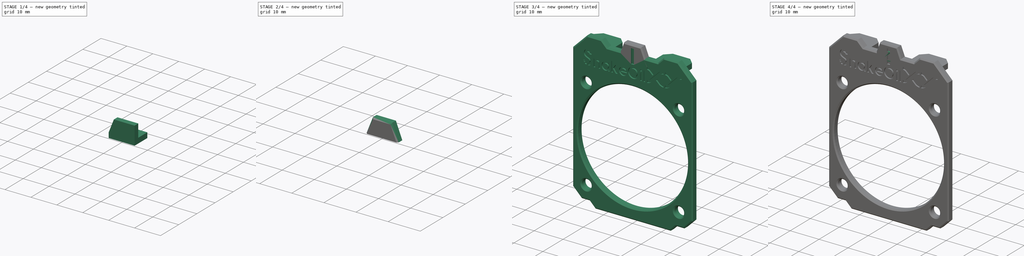
[diagram: build sequence overview — one tinted view per stage of 4, left to right]
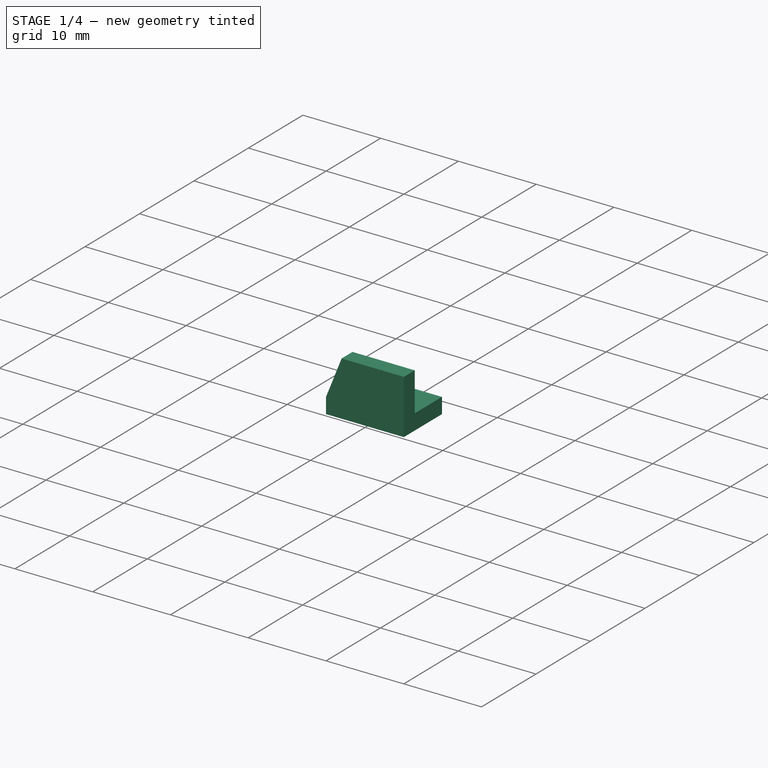
[diagram: stage 1 of 4 — iso view after this stage's code; geometry added in this stage tinted green]
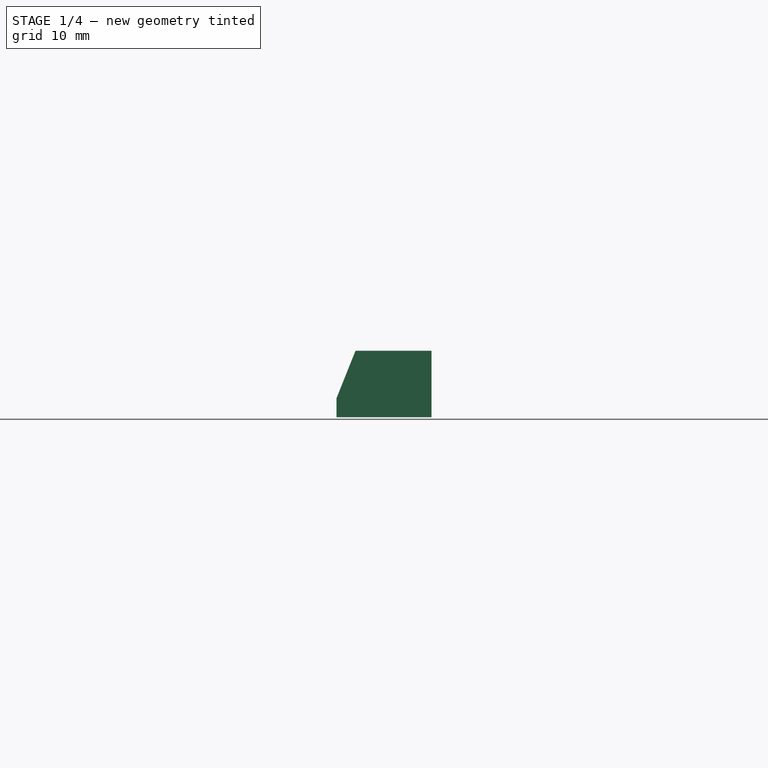
[diagram: stage 1 of 4 — front view after this stage's code; geometry added in this stage tinted green]
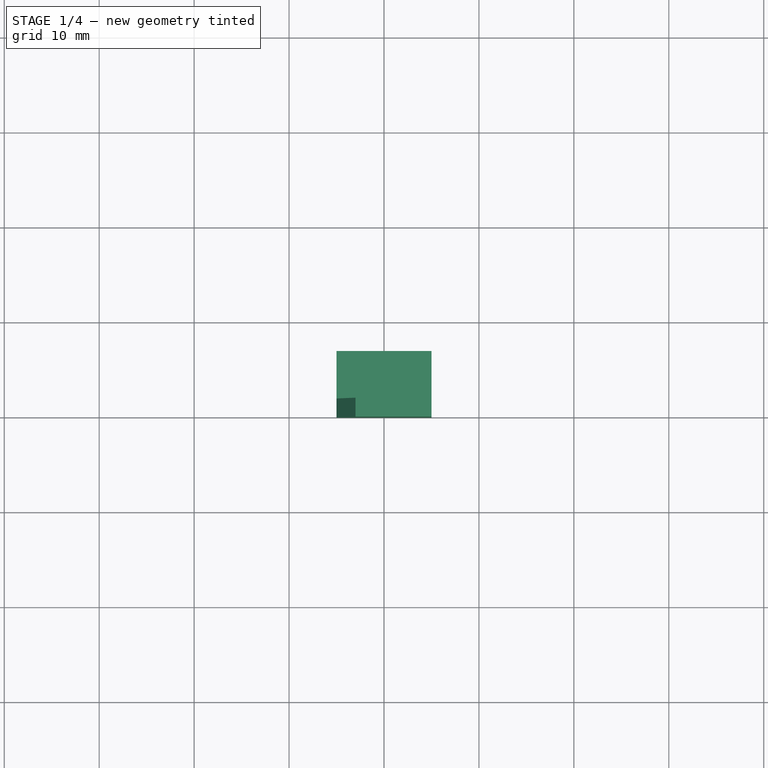
[diagram: stage 1 of 4 — top view after this stage's code; geometry added in this stage tinted green]
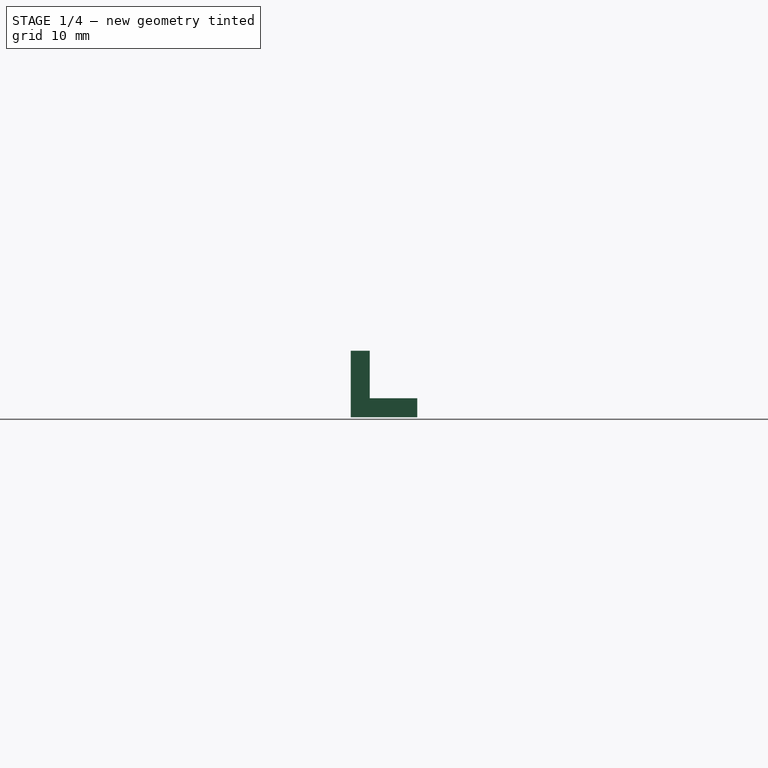
[diagram: stage 1 of 4 — right view after this stage's code; geometry added in this stage tinted green]
FCSTD DOCUMENT  (FreeCAD 0.19R24291 (Git))
Label: face
License: All rights reserved
LicenseURL: http://en.wikipedia.org/wiki/All_rights_reserved
objects: Part::Chamfer×3, Sketcher::SketchObject×3, PartDesign::Pocket×3, Part::Feature×2, Part::Box×2, PartDesign::FeatureBase×2, PartDesign::Body×2, Part::Cut×1, Part::MultiFuse×1
note: 22 computed .brp shape members not serialized (recipe doc carries the construction recipe); baked Part::Feature solids carry a one-line shape summary decoded from their .brp

FEATURE [Part::Feature] Chamfer005021077002006007019003014001  label="face-plate"
  Placement = pos=(0,-1,-48) rot=(0,0,1;0rad)
  shape: bbox 41.5 x 7.5 x 53.5 mm, 789 faces (baked)
FEATURE [Part::Box] Box  label="Cube"
  AttacherType = Attacher::AttachEngine3D
  Height = 6
  Length = 10
  Placement = pos=(-5,0,-1) rot=(0,0,1;0rad)
  Width = 2
FEATURE [Part::Chamfer] Chamfer
  Base = -> Box
  Edges = 1 edges: [Edge2 r1=5 r2=2]
FEATURE [Part::Box] Box001  label="Cube001"
  AttacherType = Attacher::AttachEngine3D
  Height = 2
  Length = 10
  Placement = pos=(-5,0,-2) rot=(0,0,1;0rad)
  Width = 7
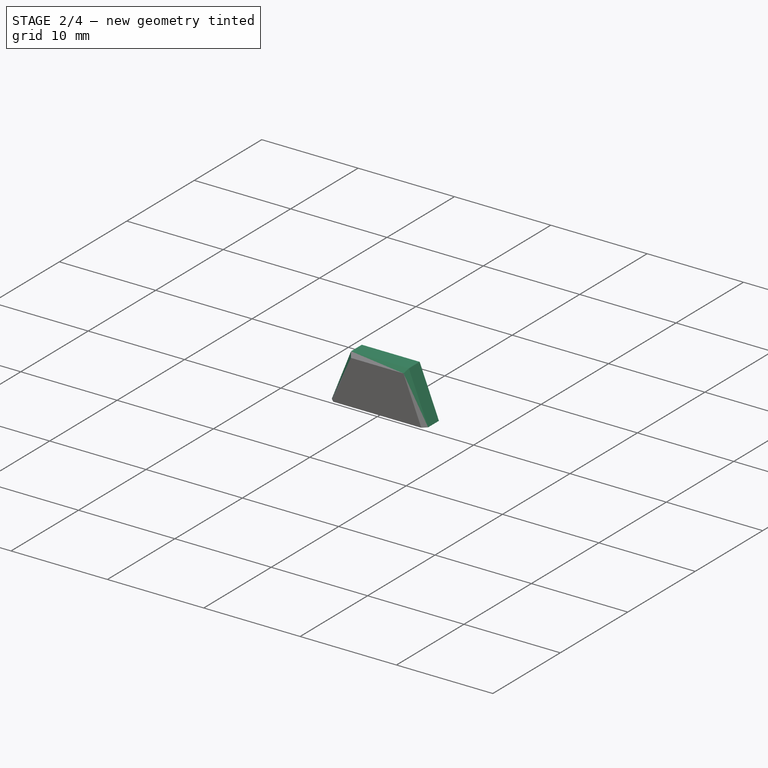
[diagram: stage 2 of 4 — iso view after this stage's code; geometry added in this stage tinted green]
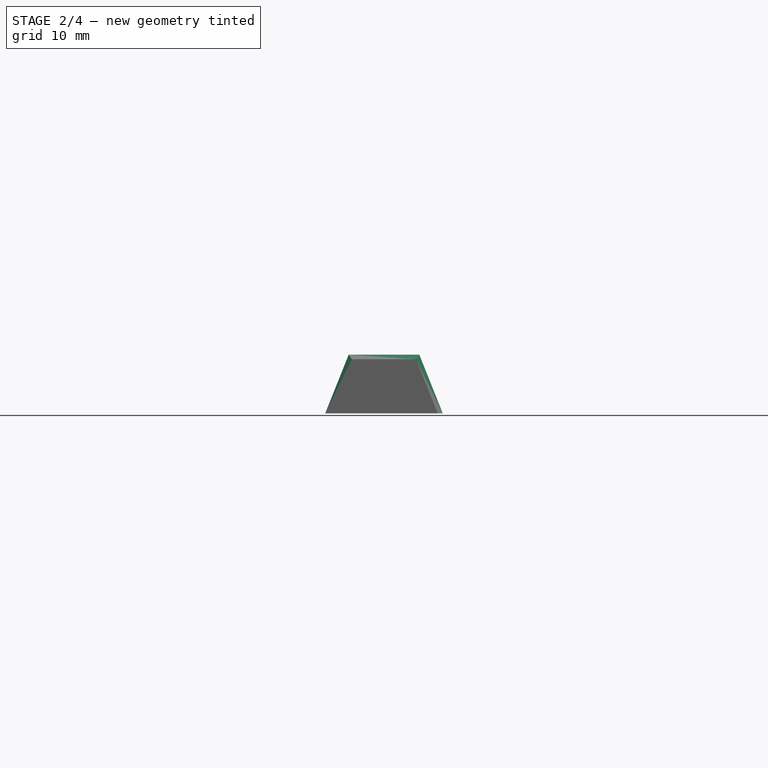
[diagram: stage 2 of 4 — front view after this stage's code; geometry added in this stage tinted green]
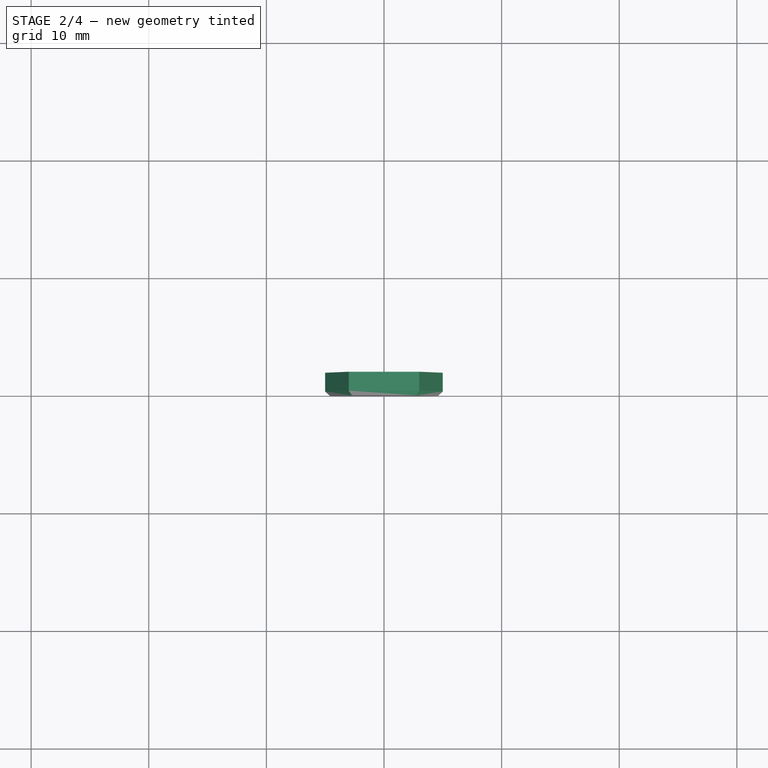
[diagram: stage 2 of 4 — top view after this stage's code; geometry added in this stage tinted green]
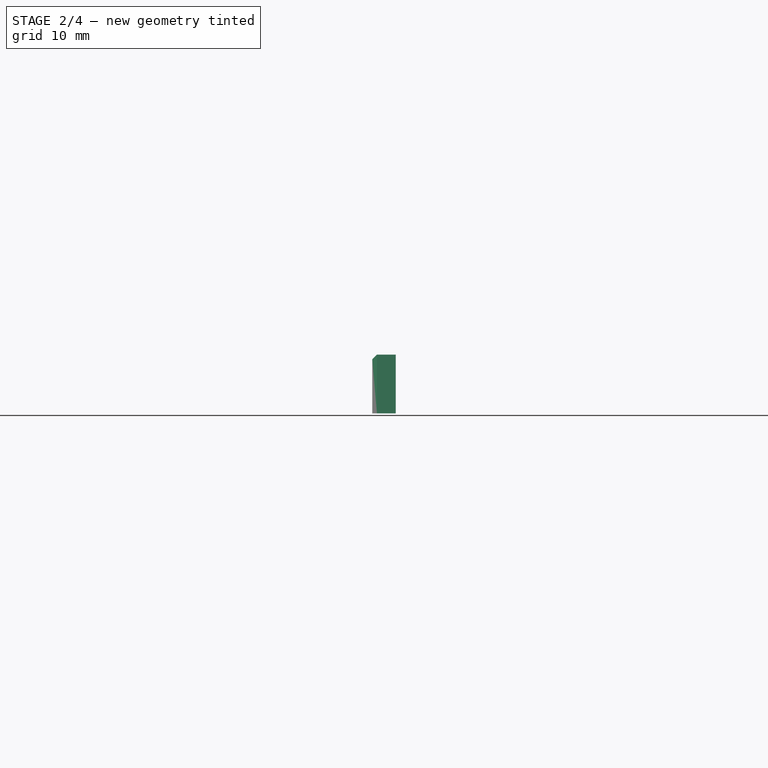
[diagram: stage 2 of 4 — right view after this stage's code; geometry added in this stage tinted green]
FEATURE [Part::Chamfer] Chamfer005021077002006007019003014002
  Base = -> Chamfer
  Edges = 1 edges: [Edge15 r1=2 r2=5]
FEATURE [Part::Chamfer] Chamfer005021077002006007019003014003
  Base = -> Chamfer005021077002006007019003014002
  Edges = 3 edges r=0.4: [Edge1,Edge2,Edge6]
FEATURE [Part::Cut] Cut  label="horn"
  Base = -> Chamfer005021077002006007019003014003
  Placement = pos=(0,0,-1) rot=(0,0,1;0rad)
  Tool = -> Box001
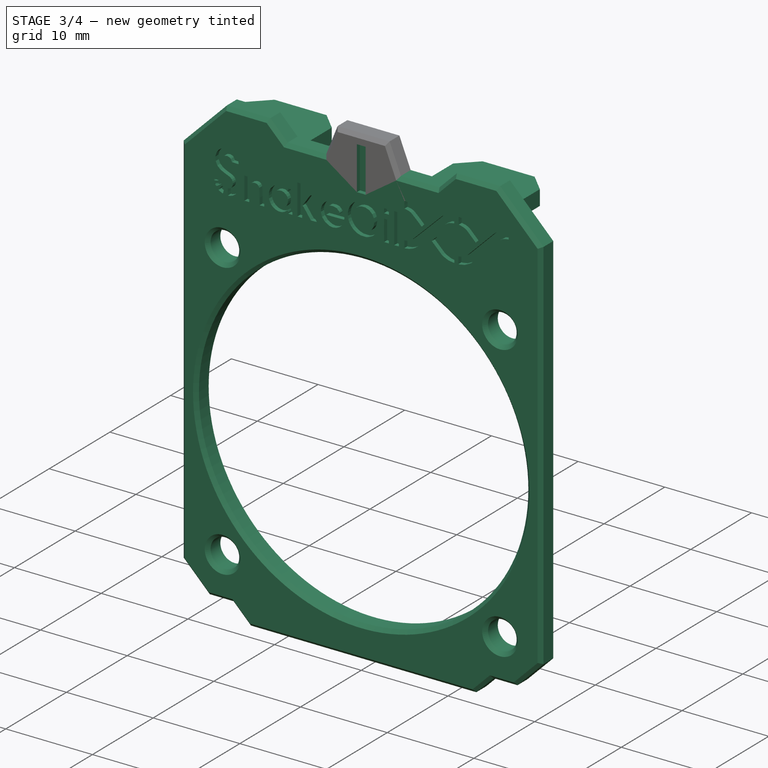
[diagram: stage 3 of 4 — iso view after this stage's code; geometry added in this stage tinted green]
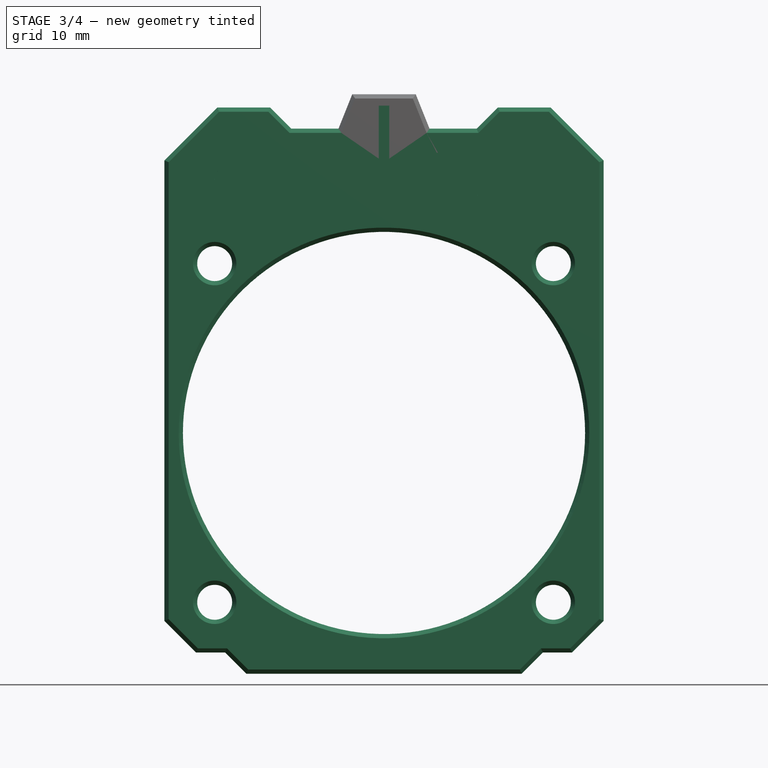
[diagram: stage 3 of 4 — front view after this stage's code; geometry added in this stage tinted green]
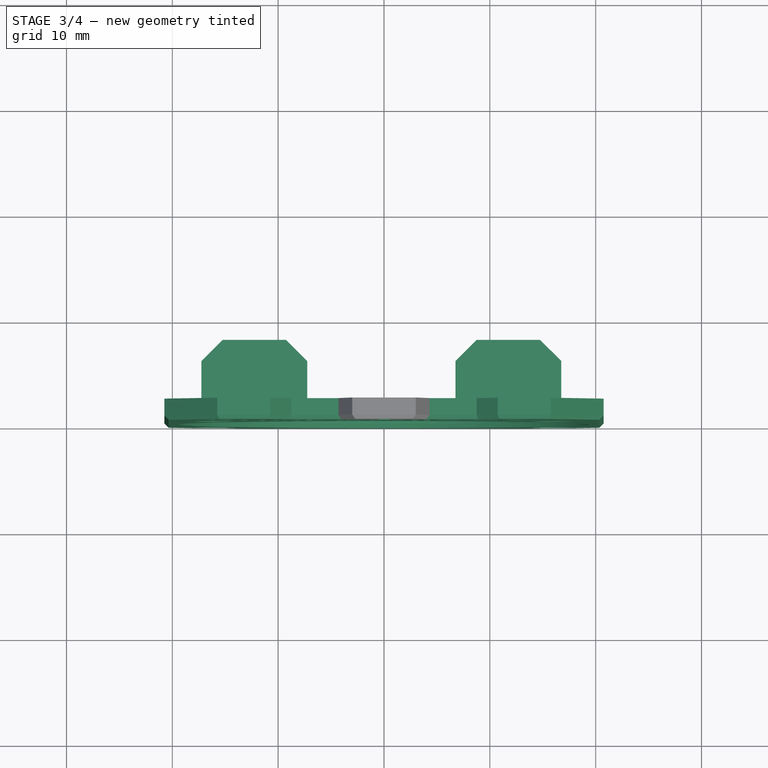
[diagram: stage 3 of 4 — top view after this stage's code; geometry added in this stage tinted green]
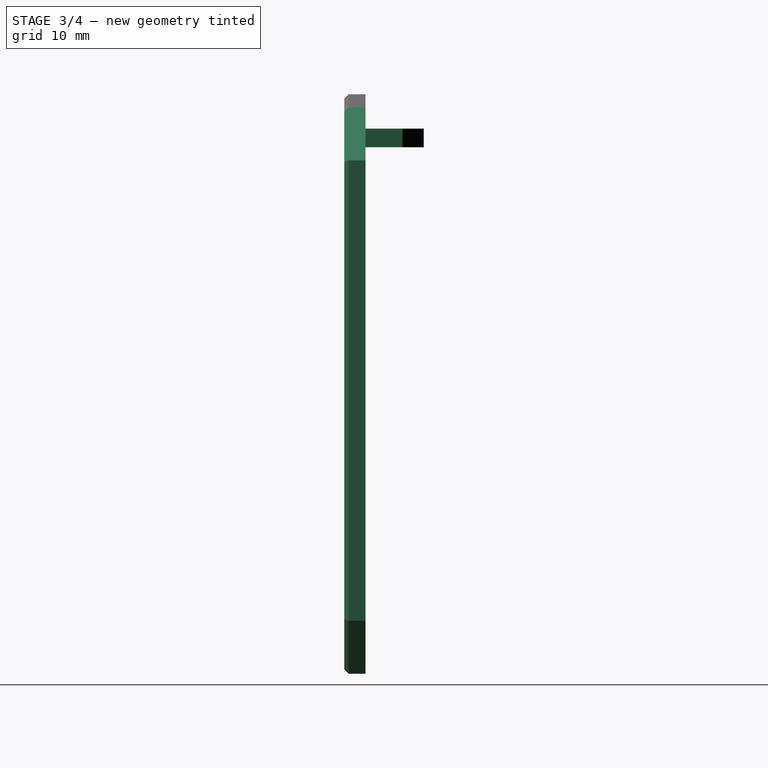
[diagram: stage 3 of 4 — right view after this stage's code; geometry added in this stage tinted green]
FEATURE [Part::Feature] Chamfer005021077002006007019003014004  label="face-plate001"
  Placement = pos=(0,-1,-48) rot=(0,0,1;0rad)
  shape: bbox 41.5 x 7.5 x 53.5 mm, 789 faces (baked)
FEATURE [Part::MultiFuse] Fusion
  Refine = true
  Shapes = -> [Cut,Chamfer005021077002006007019003014004]
FEATURE [PartDesign::Body] Body  label="e0"
  BaseFeature = -> Fusion
  Group = -> [BaseFeature,Sketch,Pocket,Sketch001,Pocket001]
  Origin = -> Origin
  Tip = -> Pocket001
FEATURE [PartDesign::FeatureBase] BaseFeature001
  BaseFeature = -> Fusion
FEATURE [Sketcher::SketchObject] Sketch002
  FullyConstrained = false
  MapMode = 5
  Placement = pos=(0,0,0) rot=(1,0,0;1.5708rad)
  Support = -> [BaseFeature001]
  sketch-geometry (4):
    g0: LineSegment StartX=-0.5 StartY=2.92361 StartZ=0 EndX=0.5 EndY=2.92361 EndZ=0
    g1: LineSegment StartX=0.5 StartY=2.92361 StartZ=0 EndX=0.5 EndY=-2.07639 EndZ=0
    g2: LineSegment StartX=0.5 StartY=-2.07639 StartZ=0 EndX=-0.5 EndY=-2.07639 EndZ=0
    g3: LineSegment StartX=-0.5 StartY=-2.07639 StartZ=0 EndX=-0.5 EndY=2.92361 EndZ=0
  constraints (11):
    c: Coincident(g0,g1)
    c: Coincident(g1,g2)
    c: Coincident(g2,g3)
    c: Coincident(g3,g0)
    c: Horizontal(g0)
    c: Horizontal(g2)
    c: Vertical(g1)
    c: Vertical(g3)
    c: DistanceX(g0,g0) = 1
    c: DistanceY(g1,g1) = 5
    c: DistanceX(g0,g-1) = 0.5
FEATURE [PartDesign::Pocket] Pocket002
  BaseFeature = -> BaseFeature001
  Length = 0.5
  Length2 = 100
  Profile = -> Sketch002
  Type = 0
FEATURE [PartDesign::Body] Body001  label="e1"
  BaseFeature = -> Fusion
  Group = -> [BaseFeature001,Sketch002,Pocket002]
  Origin = -> Origin001
  Tip = -> Pocket002
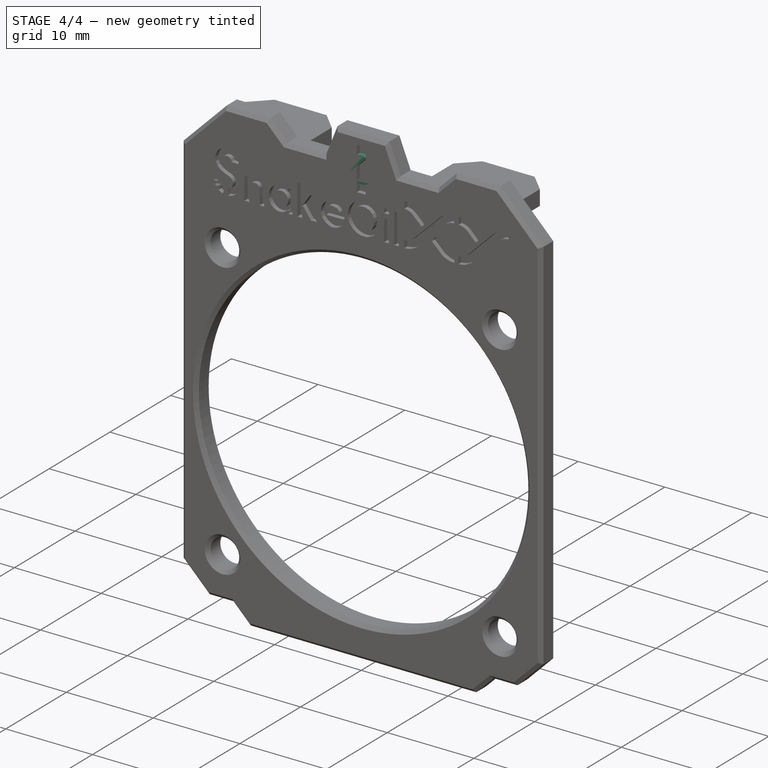
[diagram: stage 4 of 4 — iso view after this stage's code; geometry added in this stage tinted green]
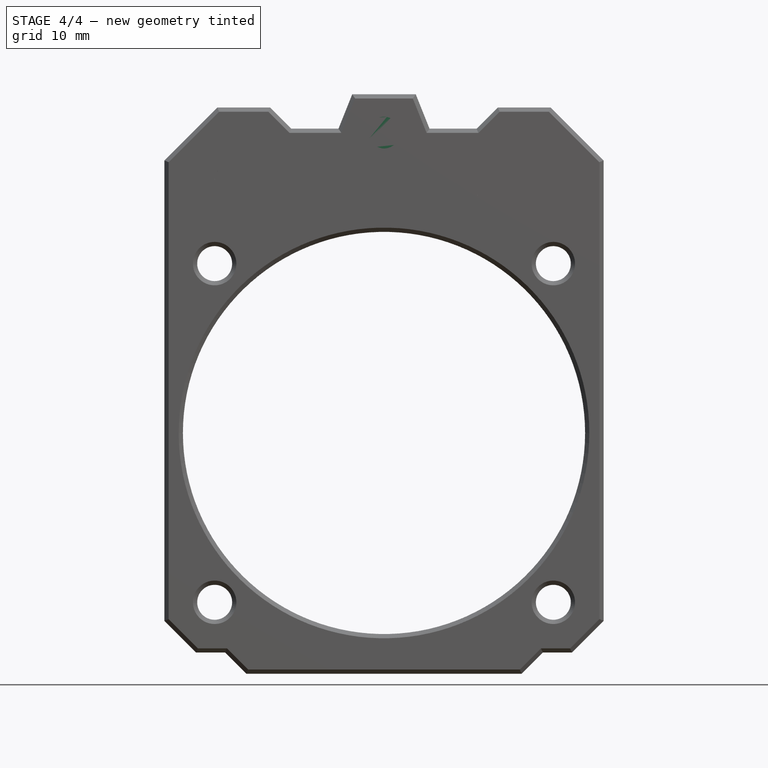
[diagram: stage 4 of 4 — front view after this stage's code; geometry added in this stage tinted green]
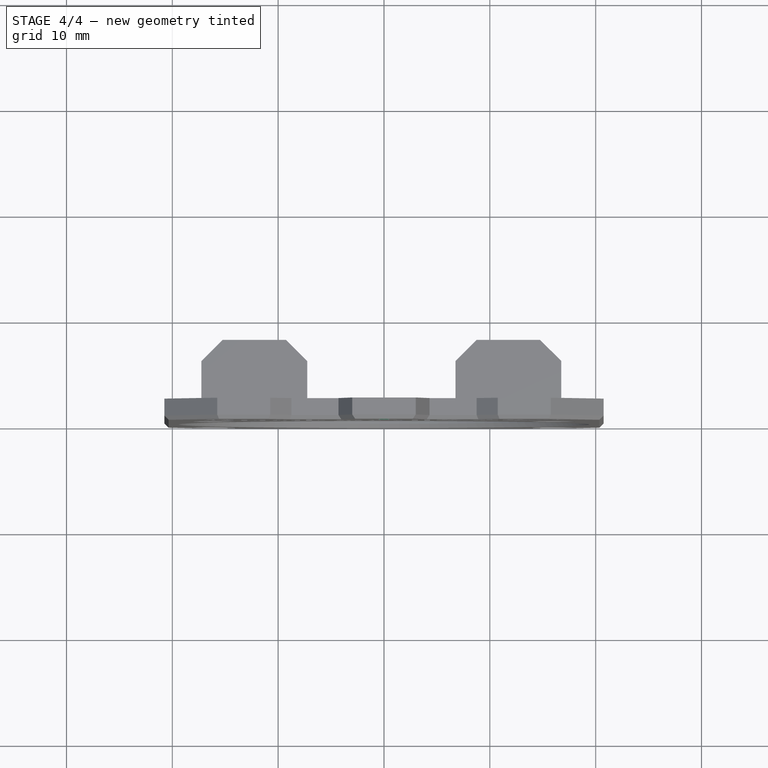
[diagram: stage 4 of 4 — top view after this stage's code; geometry added in this stage tinted green]
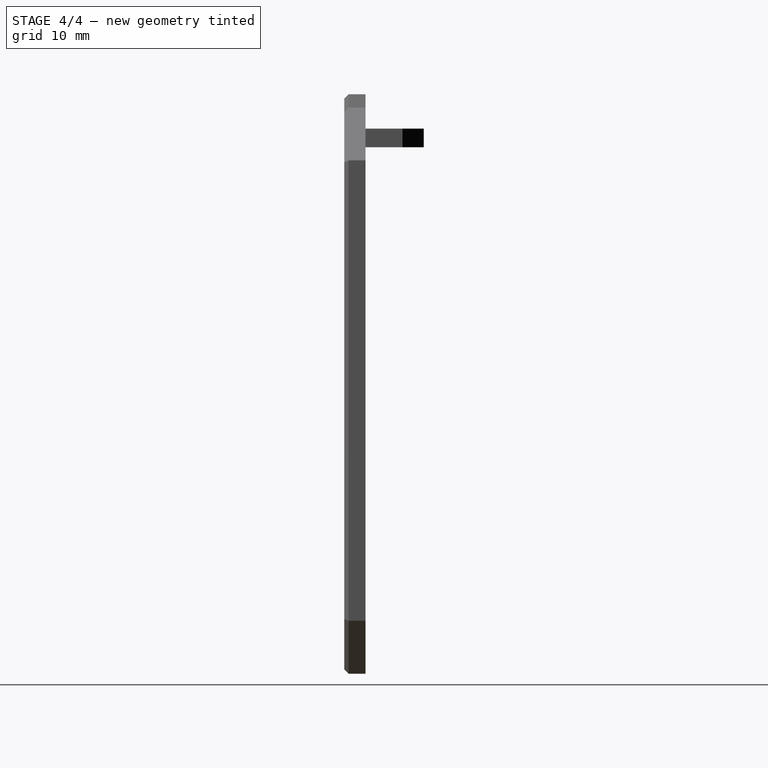
[diagram: stage 4 of 4 — right view after this stage's code; geometry added in this stage tinted green]
FEATURE [PartDesign::FeatureBase] BaseFeature
  BaseFeature = -> Fusion
FEATURE [Sketcher::SketchObject] Sketch
  ExternalGeometry = -> [BaseFeature]
  FullyConstrained = false
  MapMode = 5
  Placement = pos=(0,0,0) rot=(1,0,0;1.5708rad)
  Support = -> [BaseFeature]
  sketch-geometry (2):
    g0: Circle CenterX=0 CenterY=0.379502 CenterZ=0 NormalX=0 NormalY=0 NormalZ=1 AngleXU=0 Radius=2.5
    g1: Circle CenterX=0 CenterY=0.379502 CenterZ=0 NormalX=0 NormalY=0 NormalZ=1 AngleXU=0 Radius=1.5
  constraints (4):
    c: PointOnObject(g0,g-2)
    c: Coincident(g1,g0)
    c: Radius(g0) = 2.5
    c: Radius(g1) = 1.5
FEATURE [PartDesign::Pocket] Pocket
  BaseFeature = -> BaseFeature
  Length = 0.5
  Length2 = 100
  Profile = -> Sketch
  Type = 0
FEATURE [Sketcher::SketchObject] Sketch001
  FullyConstrained = false
  MapMode = 5
  Placement = pos=(0,0,0) rot=(1,0,0;1.5708rad)
  Support = -> [Pocket]
  sketch-geometry (4):
    g0: LineSegment StartX=-2.5915 StartY=-1.46962 StartZ=0 EndX=1.78564 EndY=2.90751 EndZ=0
    g1: LineSegment StartX=1.78564 StartY=2.90751 StartZ=0 EndX=2.49274 EndY=2.2004 EndZ=0
    g2: LineSegment StartX=2.49274 StartY=2.2004 StartZ=0 EndX=-1.88439 EndY=-2.17673 EndZ=0
    g3: LineSegment StartX=-1.88439 StartY=-2.17673 StartZ=0 EndX=-2.5915 EndY=-1.46962 EndZ=0
  constraints (9):
    c: Coincident(g0,g1)
    c: Coincident(g1,g2)
    c: Coincident(g2,g3)
    c: Coincident(g3,g0)
    c: Parallel(g0,g2)
    c: Parallel(g3,g1)
    c: Perpendicular(g0,g3)
    c: Distance(g1) = 1
    c: Angle(g-1,g2) = 0.785398
FEATURE [PartDesign::Pocket] Pocket001
  BaseFeature = -> Pocket
  Length = 0.5
  Length2 = 100
  Profile = -> Sketch001
  Refine = true
  Type = 0
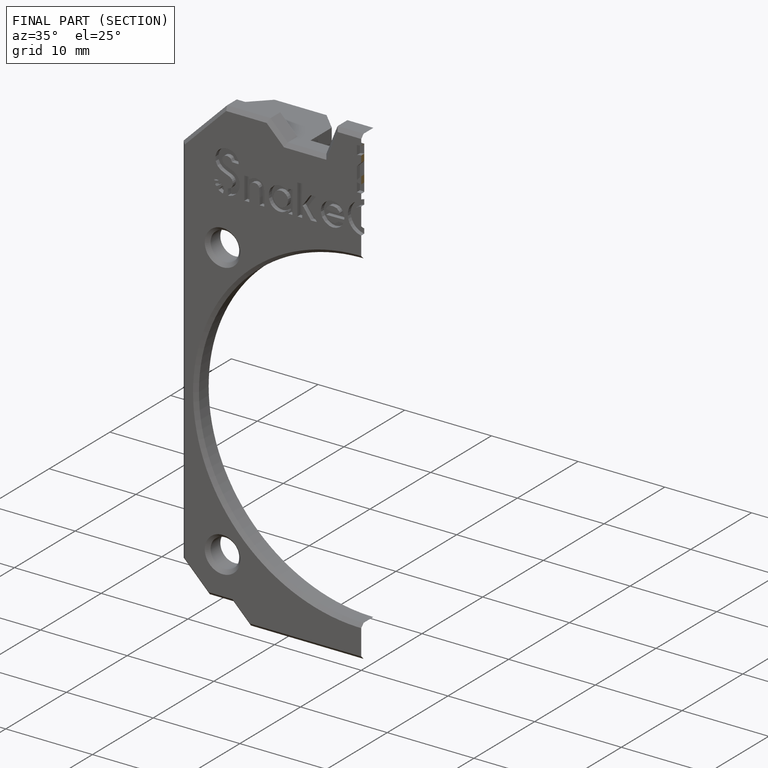
[diagram: finished part — half-section view (interior)]
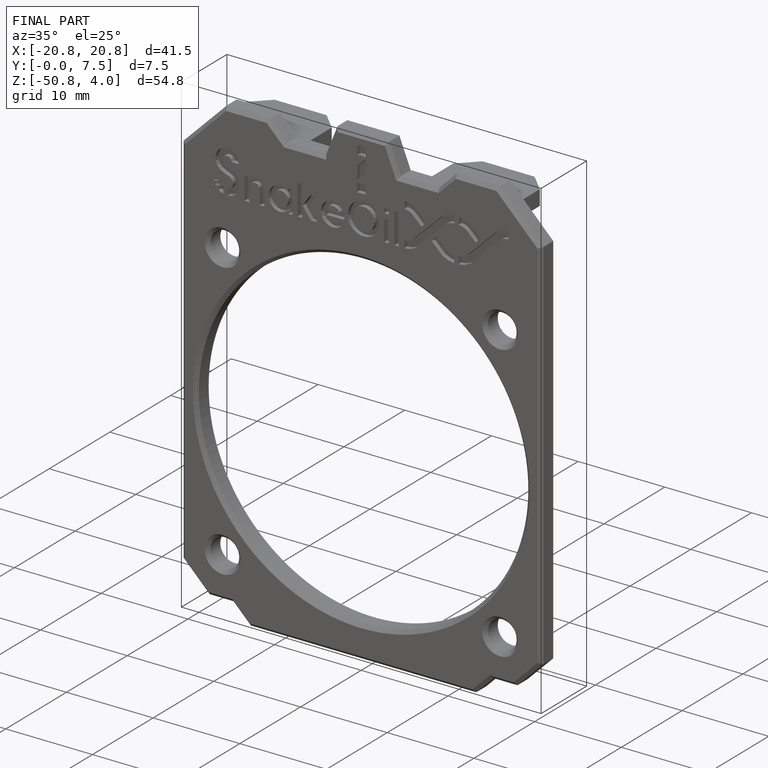
[diagram: finished part — iso view with bounding-box wireframe]
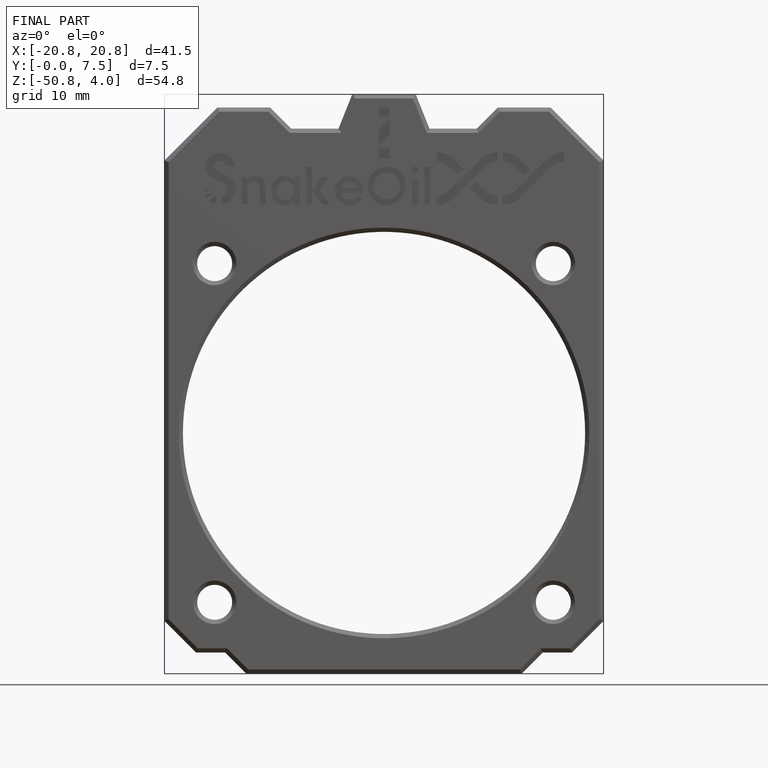
[diagram: finished part — front view with bounding-box wireframe]
